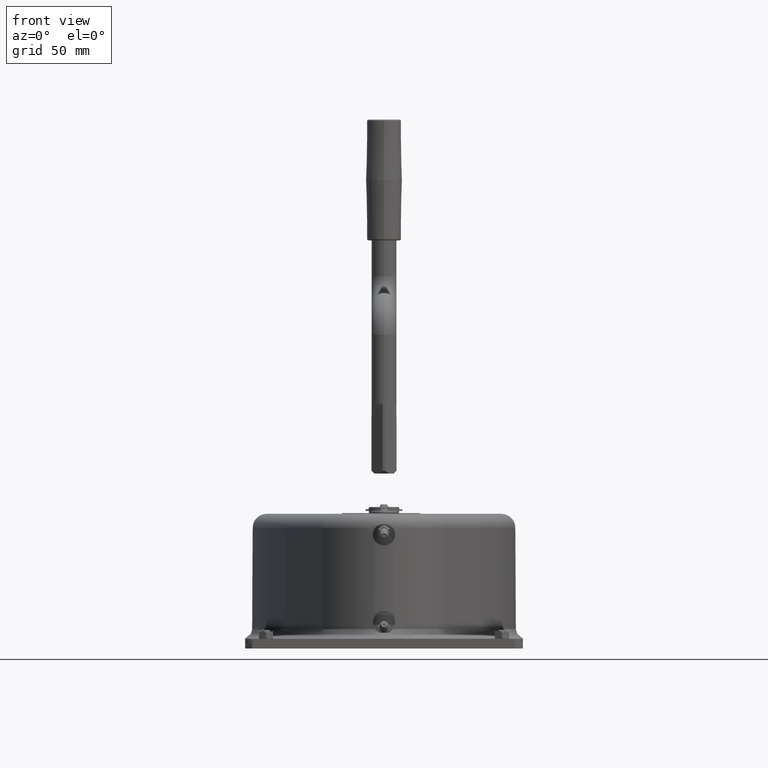
[diagram: clean part render]
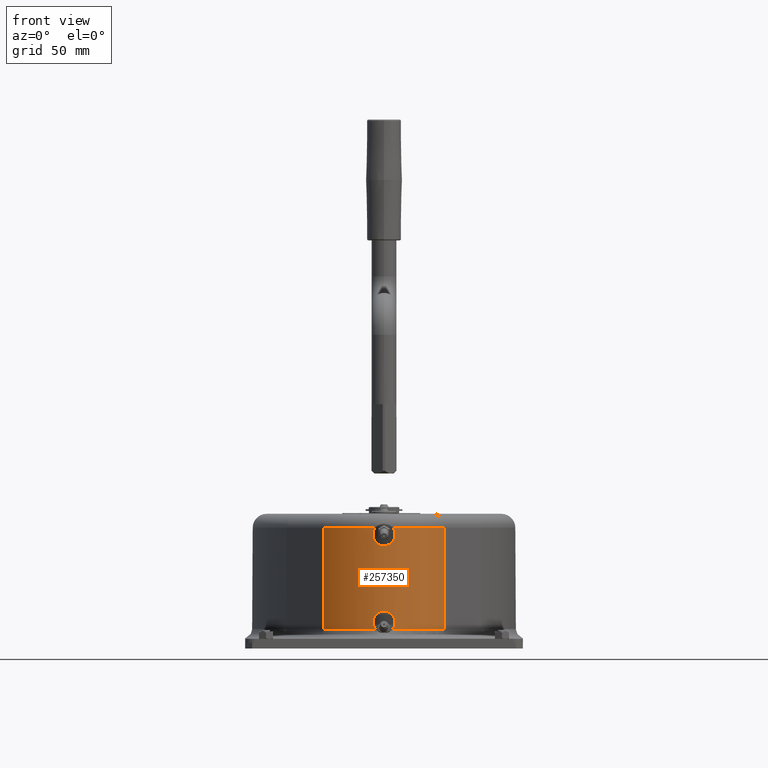
[diagram: same view with one face highlighted and labeled with its STEP entity id]
A machine part, front view. The second image highlights one B-rep face of the part: STEP entity #257350.
In plain terms, the highlighted cylindrical surface (partial cylindrical patch) has radius 50 mm, axis along (0, 0, 1).
Its self-contained STEP definition (entity closure, byte-faithful):
#84180=CARTESIAN_POINT('',(11.2511396099303,186.187848566815,68.));
#84190=VERTEX_POINT('',#84180);
#84220=CARTESIAN_POINT('',(9.50081367329997,186.471055401549,
72.9999999908777));
#84230=CARTESIAN_POINT('',(9.57073246014009,186.461011116429,
72.9124658085857));
#84240=CARTESIAN_POINT('',(9.63870090204036,186.451095814653,
72.8235965075215));
#84250=CARTESIAN_POINT('',(9.70465673110699,186.441343325992,
72.7335146633197));
#84260=CARTESIAN_POINT('',(9.77060962877667,186.431591270779,
72.643436822792));
#84270=CARTESIAN_POINT('',(9.83481382957165,186.421962947788,
72.5517862829649));
#84280=CARTESIAN_POINT('',(9.89716886755292,186.412494671554,
72.4586604845581));
#84290=CARTESIAN_POINT('',(9.95952374450985,186.403026419771,
72.3655349266374));
#84300=CARTESIAN_POINT('',(10.0200289348526,186.393718316367,
72.270934740702));
#84310=CARTESIAN_POINT('',(10.0785888783469,186.384606249589,
72.174970277313));
#84320=CARTESIAN_POINT('',(10.1371487220657,186.375494198337,
72.0790059774298));
#84330=CARTESIAN_POINT('',(10.1937628649027,186.366578278924,
71.9816780322369));
#84340=CARTESIAN_POINT('',(10.2483432535022,186.357893209351,
71.8831078928748));
#84350=CARTESIAN_POINT('',(10.3029235858491,186.349208148729,
71.7845378551028));
#84360=CARTESIAN_POINT('',(10.3554697423557,186.340754030515,
71.684726310591));
#84370=CARTESIAN_POINT('',(10.4059031946887,186.332563712898,
71.5838039455408));
#84380=CARTESIAN_POINT('',(10.4563366278738,186.324373398389,
71.4828816188072));
#84390=CARTESIAN_POINT('',(10.5046569757681,186.316446971379,
71.3808492029038));
#84400=CARTESIAN_POINT('',(10.5507968217552,186.308814797364,
71.2778445198789));
#84410=CARTESIAN_POINT('',(10.596936680106,186.301182621305,
71.1748398092524));
#84420=CARTESIAN_POINT('',(10.6408957032871,186.293844776788,
71.0708635948692));
#84430=CARTESIAN_POINT('',(10.682618749049,186.286828581023,
70.9660584976964));
#84440=CARTESIAN_POINT('',(10.7243418336755,186.279812378723,
70.8612533028987));
#84450=CARTESIAN_POINT('',(10.7638286623454,186.273117892958,
70.7556200075929));
#84460=CARTESIAN_POINT('',(10.8010370999187,186.266768935489,
70.6493034466539));
#84470=CARTESIAN_POINT('',(10.8382455981234,186.260419967675,
70.5429867124709));
#84480=CARTESIAN_POINT('',(10.8731754878149,186.254416582843,
70.435987499143));
#84490=CARTESIAN_POINT('',(10.905797923136,186.248778748227,
70.3284500110494));
#84500=CARTESIAN_POINT('',(10.9384204360656,186.243140900198,
70.2209122671252));
#84510=CARTESIAN_POINT('',(10.9687353441205,186.237868642064,
70.112837022114));
#84520=CARTESIAN_POINT('',(10.9967268866226,186.232977894038,
70.0043647394756));
#84530=CARTESIAN_POINT('',(11.0247018991837,186.228090034162,
69.8959565133443));
#84540=CARTESIAN_POINT('',(11.0504362914923,186.223569245348,
69.7868492032545));
#84550=CARTESIAN_POINT('',(11.0739094314574,186.21943004143,
69.6770429687914));
#84560=CARTESIAN_POINT('',(11.0973801473588,186.215291264967,
69.5672480739826));
#84570=CARTESIAN_POINT('',(11.1185776735017,186.211536178563,
69.4568027015751));
#84580=CARTESIAN_POINT('',(11.1374573827793,186.208181838712,
69.3458513764671));
#84590=CARTESIAN_POINT('',(11.1563370669705,186.204827503318,
69.2349001987859));
#84600=CARTESIAN_POINT('',(11.1728987434755,186.201873961098,
69.1234439110772));
#84610=CARTESIAN_POINT('',(11.1871098945283,186.199334289683,
69.0116335344256));
#84620=CARTESIAN_POINT('',(11.201321036994,186.196794619802,
68.8998232253357));
#84630=CARTESIAN_POINT('',(11.2131815210019,186.194668853851,
68.7876597025415));
#84640=CARTESIAN_POINT('',(11.2226719407705,186.192965745919,
68.6752977080425));
#84650=CARTESIAN_POINT('',(11.2321623615522,186.191262637805,
68.5629357015493));
#84660=CARTESIAN_POINT('',(11.2392826461762,186.18998220605,
68.4503761133858));
#84670=CARTESIAN_POINT('',(11.2440269585613,186.189128687932,
68.3377745634107));
#84680=CARTESIAN_POINT('',(11.2487712748546,186.188275169112,
68.2251729206788));
#84690=CARTESIAN_POINT('',(11.2511396099303,186.187848566815,
68.1125302028386));
#84700=CARTESIAN_POINT('',(11.2511396099303,186.187848566815,68.));
#84710=B_SPLINE_CURVE_WITH_KNOTS('',3,(#84220,#84230,#84240,#84250,
#84260,#84270,#84280,#84290,#84300,#84310,#84320,#84330,#84340,#84350,
#84360,#84370,#84380,#84390,#84400,#84410,#84420,#84430,#84440,#84450,
#84460,#84470,#84480,#84490,#84500,#84510,#84520,#84530,#84540,#84550,
#84560,#84570,#84580,#84590,#84600,#84610,#84620,#84630,#84640,#84650,
#84660,#84670,#84680,#84690,#84700),.UNSPECIFIED.,.F.,.F.,(4,3,3,3,3,3,3
,3,3,3,3,3,3,3,3,3,4),(0.,0.336846876620682,0.673677105427531,
1.01159423668231,1.35031367970566,1.68952865166352,2.02892025515699,
2.36816689279341,2.70695349806767,3.04498102825334,3.38197666109267,
3.71857322661593,4.0560194694542,4.39404698879382,4.73234342090534,
5.07058905962846,5.40846669598291),.UNSPECIFIED.);
#84720=CARTESIAN_POINT('',(9.50081367329996,186.471055401549,
72.9999999908778));
#84730=VERTEX_POINT('',#84720);
#84740=EDGE_CURVE('',#84730,#84190,#84710,.T.);
#86250=CARTESIAN_POINT('',(-2.98728004339489,186.689035889187,
73.0000000006251));
#86260=VERTEX_POINT('',#86250);
#86290=CARTESIAN_POINT('',(-4.74642351257192,186.467087069811,68.));
#86300=CARTESIAN_POINT('',(-4.74642351257192,186.467087069811,
68.1120472912599));
#86310=CARTESIAN_POINT('',(-4.74406222810258,186.467427800355,
68.2242744313349));
#86320=CARTESIAN_POINT('',(-4.7393229194554,186.468110633326,
68.336535612538));
#86330=CARTESIAN_POINT('',(-4.73458361997045,186.468793464977,
68.448796576713));
#86340=CARTESIAN_POINT('',(-4.7274662647136,186.469818404314,
68.5610907372153));
#86350=CARTESIAN_POINT('',(-4.71796685282144,186.471182882308,
68.6732666854693));
#86360=CARTESIAN_POINT('',(-4.70846745208712,186.472547358699,
68.7854425019635));
#86370=CARTESIAN_POINT('',(-4.69658602790996,186.474251365636,
68.8974992357875));
#86380=CARTESIAN_POINT('',(-4.68233204851704,186.47628830779,
69.0092829100257));
#86390=CARTESIAN_POINT('',(-4.66807807556597,186.478325249024,
69.1210665337452));
#86400=CARTESIAN_POINT('',(-4.6514516442779,186.480695104187,
69.2325762209912));
#86410=CARTESIAN_POINT('',(-4.63247585714387,186.483387309179,
69.3436583579953));
#86420=CARTESIAN_POINT('',(-4.61350006520155,186.486079514854,
69.4547405231465));
#86430=CARTESIAN_POINT('',(-4.59217507542211,186.489094036665,
69.5653942726797));
#86440=CARTESIAN_POINT('',(-4.56853724634364,186.492416536487,
69.6754691815178));
#86450=CARTESIAN_POINT('',(-4.54489939455422,186.495739039501,
69.7855441961147));
#86460=CARTESIAN_POINT('',(-4.51894891871865,186.499369475744,
69.8950395333087));
#86470=CARTESIAN_POINT('',(-4.49073452111775,186.503290055863,
70.0038106748346));
#86480=CARTESIAN_POINT('',(-4.46252007584838,186.507210642605,
70.1125820001304));
#86490=CARTESIAN_POINT('',(-4.43204197610078,186.511421319174,
70.2206283384376));
#86500=CARTESIAN_POINT('',(-4.39935981839942,186.515901283444,
70.3278136859935));
#86510=CARTESIAN_POINT('',(-4.38301537729295,186.518141726466,
70.3814173867226));
#86520=CARTESIAN_POINT('',(-4.36613786608487,186.52044702738,
70.4347514935983));
#86530=CARTESIAN_POINT('',(-4.34867461760448,186.522822632861,
70.487984379915));
#86540=CARTESIAN_POINT('',(-4.33121251480546,186.525198082489,
70.5412137738732));
#86550=CARTESIAN_POINT('',(-4.31317463315298,186.527642464144,
70.5943074863222));
#86560=CARTESIAN_POINT('',(-4.29456369383904,186.530153497093,
70.6472483105586));
#86570=CARTESIAN_POINT('',(-4.2573418397796,186.535175559677,
70.7531298891438));
#86580=CARTESIAN_POINT('',(-4.21782699483055,186.540464426469,
70.8583998867111));
#86590=CARTESIAN_POINT('',(-4.17605067322015,186.545999300862,
70.9629179856774));
#86600=CARTESIAN_POINT('',(-4.13427443450153,186.551534164271,
71.0674358772609));
#86610=CARTESIAN_POINT('',(-4.09023694946441,186.557314985972,
71.1712011154916));
#86620=CARTESIAN_POINT('',(-4.04398307327196,186.563317746318,
71.2740720721129));
#86630=CARTESIAN_POINT('',(-3.99772925608651,186.569320499007,
71.3769428974996));
#86640=CARTESIAN_POINT('',(-3.94925934133789,186.575545130186,
71.4789186866067));
#86650=CARTESIAN_POINT('',(-3.89863129803847,186.581964737572,
71.5798594117087));
#86660=CARTESIAN_POINT('',(-3.84800328562861,186.58838434104,
71.680800075224));
#86670=CARTESIAN_POINT('',(-3.79521749465603,186.594998851779,
71.7807049348004));
#86680=CARTESIAN_POINT('',(-3.74034433956447,186.601778923581,
71.8794381876442));
#86690=CARTESIAN_POINT('',(-3.68547118280285,186.608558995588,
71.978171443493));
#86700=CARTESIAN_POINT('',(-3.62851106113618,186.615504553236,
72.0757323801133));
#86710=CARTESIAN_POINT('',(-3.56954575187569,186.622584323577,
72.171991770388));
#86720=CARTESIAN_POINT('',(-3.51058040341975,186.629664098624,
72.2682512246483));
#86730=CARTESIAN_POINT('',(-3.44961030831585,186.636878006933,
72.363208458873));
#86740=CARTESIAN_POINT('',(-3.38672712189084,186.644193423848,
72.4567429121865));
#86750=CARTESIAN_POINT('',(-3.32384385298197,186.651508850358,
72.550277488189));
#86760=CARTESIAN_POINT('',(-3.25904796744366,186.658925704644,
72.6423886590174));
#86770=CARTESIAN_POINT('',(-3.19243910928688,186.666410621857,
72.7329663690503));
#86780=CARTESIAN_POINT('',(-3.12583011858809,186.673895553964,
72.8235442593198));
#86790=CARTESIAN_POINT('',(-3.05740865489871,186.681448469491,
72.9125881243661));
#86800=CARTESIAN_POINT('',(-2.98728004339489,186.689035889187,
73.0000000006251));
#86810=B_SPLINE_CURVE_WITH_KNOTS('',3,(#86290,#86300,#86310,#86320,
#86330,#86340,#86350,#86360,#86370,#86380,#86390,#86400,#86410,#86420,
#86430,#86440,#86450,#86460,#86470,#86480,#86490,#86500,#86510,#86520,
#86530,#86540,#86550,#86560,#86570,#86580,#86590,#86600,#86610,#86620,
#86630,#86640,#86650,#86660,#86670,#86680,#86690,#86700,#86710,#86720,
#86730,#86740,#86750,#86760,#86770,#86780,#86790,#86800),.UNSPECIFIED.,
.F.,.F.,(4,3,3,3,3,3,3,3,3,3,3,3,3,3,3,3,3,4),(0.,0.336637554856298,
0.674084810822387,1.0120496166152,1.35022175130385,1.68828306748942,
2.02591728002958,2.36281987986915,2.53096446120253,2.6993324854289,
3.03691333662917,3.37540386063359,3.71451742000554,4.05394646447579,
4.39337221430096,4.73247385848469,5.07093770383675,5.40846670862235),
.UNSPECIFIED.);
#86820=CARTESIAN_POINT('',(-4.74642351257193,186.467087069811,68.));
#86830=VERTEX_POINT('',#86820);
#86840=EDGE_CURVE('',#86830,#86260,#86810,.T.);
#251220=CARTESIAN_POINT('',(46.5436652625398,160.442730636335,
-2.8421709430404E-14));
#251230=VERTEX_POINT('',#251220);
#251420=CARTESIAN_POINT('',(46.5436652625398,160.442730636335,83.));
#251430=DIRECTION('',(0.,-0.,-1.));
#251440=VECTOR('',#251430,1.);
#251450=LINE('',#251420,#251440);
#251460=CARTESIAN_POINT('',(46.5436652625398,160.442730636335,73.));
#251470=VERTEX_POINT('',#251460);
#251480=EDGE_CURVE('',#251470,#251230,#251450,.T.);
#251610=CARTESIAN_POINT('',(2.39097968190802,136.979134236425,83.));
#251620=DIRECTION('',(0.,-0.,-1.));
#251630=DIRECTION('',(0.999847695156391,-0.0174524064372835,0.));
#251640=AXIS2_PLACEMENT_3D('',#251610,#251620,#251630);
#251650=CYLINDRICAL_SURFACE('',#251640,50.);
#251660=ORIENTED_EDGE('',*,*,#84740,.F.);
#251670=CARTESIAN_POINT('',(11.2511396099303,186.187848566815,68.));
#251680=CARTESIAN_POINT('',(11.2511396099303,186.187848566815,
67.8514713898935));
#251690=CARTESIAN_POINT('',(11.2470124835021,186.188592193984,
67.7031418985853));
#251700=CARTESIAN_POINT('',(11.2388097664166,186.190066993239,
67.55534959222));
#251710=CARTESIAN_POINT('',(11.230613586233,186.191540617199,
67.4076750643646));
#251720=CARTESIAN_POINT('',(11.2183277669288,186.193747963237,
67.2600485271117));
#251730=CARTESIAN_POINT('',(11.2019008011552,186.196688716819,
67.1124581558751));
#251740=CARTESIAN_POINT('',(11.1854769343408,186.199628915627,
66.9648956276704));
#251750=CARTESIAN_POINT('',(11.1649202763612,186.203301014261,
66.8174899656125));
#251760=CARTESIAN_POINT('',(11.1402366813903,186.20768796248,
66.6705851278947));
#251770=CARTESIAN_POINT('',(11.1155531733061,186.212074895256,
66.5236808072844));
#251780=CARTESIAN_POINT('',(11.0867430881829,186.217176581771,
66.3772807380325));
#251790=CARTESIAN_POINT('',(11.0538532254923,186.222962499141,
66.2317369126968));
#251800=CARTESIAN_POINT('',(11.0209634086694,186.228748408443,
66.0861932903338));
#251810=CARTESIAN_POINT('',(10.9839945105452,186.23521837266,
65.9415093592623));
#251820=CARTESIAN_POINT('',(10.9430345290489,186.242328995713,
65.7980333858353));
#251830=CARTESIAN_POINT('',(10.9020745215419,186.249439623281,
65.654557321297));
#251840=CARTESIAN_POINT('',(10.8571244331552,186.257190664236,
65.5122925642748));
#251850=CARTESIAN_POINT('',(10.8083110156211,186.265527218892,
65.3715728081713));
#251860=CARTESIAN_POINT('',(10.7594974677578,186.273863795807,
65.2308526763534));
#251870=CARTESIAN_POINT('',(10.7068218601268,186.282785586213,
65.0916806910396));
#251880=CARTESIAN_POINT('',(10.650444645521,186.292228222866,
64.9543660157818));
#251890=CARTESIAN_POINT('',(10.594067159726,186.301670904942,
64.8170506800046));
#251900=CARTESIAN_POINT('',(10.5339895543211,186.31163409692,
64.6815954943336));
#251910=CARTESIAN_POINT('',(10.4703982901373,186.322046543595,
64.548276024886));
#251920=CARTESIAN_POINT('',(10.4386016721354,186.327252928365,
64.481614223196));
#251930=CARTESIAN_POINT('',(10.4059523017507,186.33256750657,
64.4155313007927));
#251940=CARTESIAN_POINT('',(10.3723063818647,186.338008049637,
64.3497403697212));
#251950=CARTESIAN_POINT('',(10.3386712307231,186.343446851399,
64.2839704957563));
#251960=CARTESIAN_POINT('',(10.3040880871325,186.349003681671,
64.2185934230317));
#251970=CARTESIAN_POINT('',(10.2685696259196,186.354670452998,
64.1536472179368));
#251980=CARTESIAN_POINT('',(10.1975327325293,186.366003991019,
64.0237548608387));
#251990=CARTESIAN_POINT('',(10.122752596594,186.377777744957,
63.8955870157223));
#252000=CARTESIAN_POINT('',(10.0443596978574,186.389920248507,
63.7694483881739));
#252010=CARTESIAN_POINT('',(9.96596705875206,186.402062711843,
63.6433101783871));
#252020=CARTESIAN_POINT('',(9.88396311018451,186.414573592321,
63.5192038942455));
#252030=CARTESIAN_POINT('',(9.79851651433607,186.427373821637,
63.397426503569));
#252040=CARTESIAN_POINT('',(9.71307003719564,186.44017403317,
63.2756492820736));
#252050=CARTESIAN_POINT('',(9.62418264745398,186.453263219316,
63.1562035665934));
#252060=CARTESIAN_POINT('',(9.5320575526323,186.466556950125,
63.0393687854449));
#252070=CARTESIAN_POINT('',(9.43993241647044,186.479850686899,
62.9225339518679));
#252080=CARTESIAN_POINT('',(9.34457153727726,186.493348571548,
62.8083124960252));
#252090=CARTESIAN_POINT('',(9.24620714618858,186.506963347068,
62.696958126047));
#252100=CARTESIAN_POINT('',(9.14784252916548,186.520578153859,
62.5856035002976));
#252110=CARTESIAN_POINT('',(9.04647653354854,186.534309451826,
62.4771181694081));
#252120=CARTESIAN_POINT('',(8.94236302259528,186.548069834473,
62.3717234707714));
#252130=CARTESIAN_POINT('',(8.83824906924691,186.561830275589,
62.2663283242956));
#252140=CARTESIAN_POINT('',(8.73138984223258,186.575619419042,
62.1640257214867));
#252150=CARTESIAN_POINT('',(8.62205148446067,186.589352379379,
62.0649995025262));
#252160=CARTESIAN_POINT('',(8.56736447468385,186.596221099117,
62.0154702438578));
#252170=CARTESIAN_POINT('',(8.51214159733415,186.603065540902,
61.9668319762463));
#252180=CARTESIAN_POINT('',(8.45615503786124,186.609907431103,
61.9188804914435));
#252190=CARTESIAN_POINT('',(8.40016743198044,186.616749449181,
61.870928110411));
#252200=CARTESIAN_POINT('',(8.34344251775813,186.623585403461,
61.8236893479227));
#252210=CARTESIAN_POINT('',(8.28600573265127,186.630404792787,
61.7771953260903));
#252220=CARTESIAN_POINT('',(8.19833033867699,186.640814369938,
61.7062237061776));
#252230=CARTESIAN_POINT('',(8.10899584358681,186.651185317056,
61.6369878774021));
#252240=CARTESIAN_POINT('',(8.01810358690159,186.661479959608,
61.5695951168841));
#252250=CARTESIAN_POINT('',(7.92721149720553,186.671774583247,
61.5022024801814));
#252260=CARTESIAN_POINT('',(7.83476223935751,186.681992800624,
61.4366534313946));
#252270=CARTESIAN_POINT('',(7.74086928079054,186.692097146313,
61.3730489018417));
#252280=CARTESIAN_POINT('',(7.64697643023281,186.702201480378,
61.309444445456));
#252290=CARTESIAN_POINT('',(7.55164053220332,186.712191840032,
61.2477850001263));
#252300=CARTESIAN_POINT('',(7.45498551049987,186.722031668802,
61.1881628656673));
#252310=CARTESIAN_POINT('',(7.35833053624684,186.731871492742,
61.1285407604783));
#252320=CARTESIAN_POINT('',(7.26035714051073,186.741560685162,
61.0709564210003));
#252330=CARTESIAN_POINT('',(7.16119776301506,186.751064271925,
61.0154916578203));
#252340=CARTESIAN_POINT('',(7.06203836954988,186.760567860218,
60.9600268857077));
#252350=CARTESIAN_POINT('',(6.96169373422624,186.769885747256,
60.9066820993439));
#252360=CARTESIAN_POINT('',(6.86030260101897,186.77898516637,
60.8555271780089));
#252370=CARTESIAN_POINT('',(6.7589113841717,186.788084592991,
60.804372214475));
#252380=CARTESIAN_POINT('',(6.6564744348787,186.79696546392,
60.755407472176));
#252390=CARTESIAN_POINT('',(6.55313430755316,186.805597776117,
60.708689874132));
#252400=CARTESIAN_POINT('',(6.44979402312394,186.814230101438,
60.6619722050651));
#252410=CARTESIAN_POINT('',(6.34555133791818,186.822613790719,
60.6175019756421));
#252420=CARTESIAN_POINT('',(6.24054982585188,186.830722071788,
60.5753225610795));
#252430=CARTESIAN_POINT('',(6.1355480760046,186.838830371219,
60.5331430509997));
#252440=CARTESIAN_POINT('',(6.02978827230279,186.846663198037,
60.4932545831176));
#252450=CARTESIAN_POINT('',(5.92341190750622,186.854197369935,
60.4556868594113));
#252460=CARTESIAN_POINT('',(5.87021833696598,186.857964837502,
60.4369010946897));
#252470=CARTESIAN_POINT('',(5.81689373594836,186.86165611192,
60.4187030946829));
#252480=CARTESIAN_POINT('',(5.76338969583558,186.865273099821,
60.401073604665));
#252490=CARTESIAN_POINT('',(5.7098731300919,186.868890934481,
60.383439987473));
#252500=CARTESIAN_POINT('',(5.65613507702656,186.872437214468,
60.3663618466596));
#252510=CARTESIAN_POINT('',(5.6021928739237,186.875908779831,
60.3498468580031));
#252520=CARTESIAN_POINT('',(5.49430844490685,186.882851912024,
60.3168168737063));
#252530=CARTESIAN_POINT('',(5.38560728728696,186.889495966875,
60.2860403271812));
#252540=CARTESIAN_POINT('',(5.27623365166631,186.895817915632,
60.2575701098143));
#252550=CARTESIAN_POINT('',(5.1668600925257,186.902139859969,
60.2290999123553));
#252560=CARTESIAN_POINT('',(5.05681489261099,186.908139630775,
60.2029362886313));
#252570=CARTESIAN_POINT('',(4.94624804758496,186.913797583437,
60.1791197863657));
#252580=CARTESIAN_POINT('',(4.83568120023332,186.919455536217,
60.1553032835992));
#252590=CARTESIAN_POINT('',(4.72459357197855,186.924771614574,
60.1338340888577));
#252600=CARTESIAN_POINT('',(4.61313814399418,186.92972994628,
60.1147395213252));
#252610=CARTESIAN_POINT('',(4.50168263266092,186.934688281694,
60.0956449395134));
#252620=CARTESIAN_POINT('',(4.38986019527109,186.939288827136,
60.078925108867));
#252630=CARTESIAN_POINT('',(4.27782388946744,186.943519741867,
60.064593776938));
#252640=CARTESIAN_POINT('',(4.16576983303229,186.947751326929,
60.0502601744042));
#252650=CARTESIAN_POINT('',(4.05359315086452,186.951610428059,
60.0383229561692));
#252660=CARTESIAN_POINT('',(3.94112937145466,186.955098818812,
60.0287575980369));
#252670=CARTESIAN_POINT('',(3.8286712066322,186.958587035413,
60.0191927174408));
#252680=CARTESIAN_POINT('',(3.7159947862125,186.961701764157,
60.0120096173152));
#252690=CARTESIAN_POINT('',(3.60323746847893,186.964436386746,
60.0072159067668));
#252700=CARTESIAN_POINT('',(3.49047097473487,186.967171231875,
60.0024218061138));
#252710=CARTESIAN_POINT('',(3.37759961055494,186.969526583907,
60.0000158713335));
#252720=CARTESIAN_POINT('',(3.26471893679616,186.97149945067,
60.0000000782745));
#252730=CARTESIAN_POINT('',(3.1518389034348,186.973472306242,
59.9999842853052));
#252740=CARTESIAN_POINT('',(3.03895250563819,186.975062629235,
60.0023586083385));
#252750=CARTESIAN_POINT('',(2.92615542466642,186.976270023632,
60.007121302004));
#252760=CARTESIAN_POINT('',(2.81336905488437,186.977477303374,
60.011883543405));
#252770=CARTESIAN_POINT('',(2.70065354936649,186.978301839208,
60.0190350215579));
#252780=CARTESIAN_POINT('',(2.58814275670494,186.978745502134,
60.0285681270267));
#252790=CARTESIAN_POINT('',(2.36328605366413,186.979632177806,
60.0476203673916));
#252800=CARTESIAN_POINT('',(2.13864609800675,186.978998308907,
60.0762333883733));
#252810=CARTESIAN_POINT('',(1.91487173978427,186.976867397314,
60.1144921294995));
#252820=CARTESIAN_POINT('',(1.8030073804329,186.975802158821,
60.1336175985642));
#252830=CARTESIAN_POINT('',(1.69140896082825,186.974363654809,
60.1551460264009));
#252840=CARTESIAN_POINT('',(1.58023099609754,186.972560669992,
60.1790620317773));
#252850=CARTESIAN_POINT('',(1.46905316963857,186.970757687418,
60.2029780074094));
#252860=CARTESIAN_POINT('',(1.35829668039081,186.968590241812,
60.2292814142799));
#252870=CARTESIAN_POINT('',(1.24811705228285,186.966071180089,
60.2579428482191));
#252880=CARTESIAN_POINT('',(1.13793748147553,186.963552119676,
60.2866042672526));
#252890=CARTESIAN_POINT('',(1.02833565103381,186.960681474517,
60.317623502081));
#252900=CARTESIAN_POINT('',(0.919465116121756,186.957475994458,
60.3509573077979));
#252910=CARTESIAN_POINT('',(0.810594561494135,186.954270513818,
60.3842911195514));
#252920=CARTESIAN_POINT('',(0.702456161314431,186.950730241946,
60.4199392310663));
#252930=CARTESIAN_POINT('',(0.595198714751685,186.946875537369,
60.4578452623894));
#252940=CARTESIAN_POINT('',(0.487941173801804,186.943020829399,
60.49575132707));
#252950=CARTESIAN_POINT('',(0.381565409169361,186.938851742936,
60.5359149867018));
#252960=CARTESIAN_POINT('',(0.276212862646314,186.934391830598,
60.5782679419783));
#252970=CARTESIAN_POINT('',(0.170860147881859,186.929931911137,
60.6206209648897));
#252980=CARTESIAN_POINT('',(0.0665314225587287,186.925181228397,
60.6651629120047));
#252990=CARTESIAN_POINT('',(-0.0366416465699444,186.920166010764,
60.7118152911815));
#253000=CARTESIAN_POINT('',(-0.139814958283848,186.915150781339,
60.7584677800496));
#253010=CARTESIAN_POINT('',(-0.241831908714619,186.909871085457,
60.8072302913386));
#253020=CARTESIAN_POINT('',(-0.342572834837912,186.9043552238,
60.8580163905792));
#253030=CARTESIAN_POINT('',(-0.443251028860526,186.89884279691,
60.9087708649498));
#253040=CARTESIAN_POINT('',(-0.542986530335742,186.893076500124,
60.9617117164708));
#253050=CARTESIAN_POINT('',(-0.641748978260654,186.887075056237,
61.0168487130673));
#253060=CARTESIAN_POINT('',(-0.7405029223204,186.881074129099,
61.0719809621347));
#253070=CARTESIAN_POINT('',(-0.838246893195309,186.874840148369,
61.1292902588166));
#253080=CARTESIAN_POINT('',(-0.934845316549503,186.868400497613,
61.1887202466335));
#253090=CARTESIAN_POINT('',(-1.03144356198735,186.861960858717,
61.2481501249914));
#253100=CARTESIAN_POINT('',(-1.12689555662766,186.855315612068,
61.3097003347548));
#253110=CARTESIAN_POINT('',(-1.22106713290967,186.84849474774,
61.3733012119318));
#253120=CARTESIAN_POINT('',(-1.31523860083287,186.841673891261,
61.4369020159262));
#253130=CARTESIAN_POINT('',(-1.40812895866764,186.834677488569,
61.502553066574));
#253140=CARTESIAN_POINT('',(-1.49960820488425,186.827537680217,
61.5701721423124));
#253150=CARTESIAN_POINT('',(-1.59108740564104,186.820397875414,
61.6377911844481));
#253160=CARTESIAN_POINT('',(-1.68115482692949,186.813114743192,
61.7073777782808));
#253170=CARTESIAN_POINT('',(-1.76968705214329,186.805722041814,
61.778838276856));
#253180=CARTESIAN_POINT('',(-1.88568341463639,186.796036004139,
61.8724669852347));
#253190=CARTESIAN_POINT('',(-1.99904172637776,186.786161998935,
61.9693121088647));
#253200=CARTESIAN_POINT('',(-2.10950814107006,186.77617841934,
62.0691382779125));
#253210=CARTESIAN_POINT('',(-2.21997479228774,186.766194818369,
62.1689646607033));
#253220=CARTESIAN_POINT('',(-2.32754734518323,186.756101966457,
62.2717699275762));
#253230=CARTESIAN_POINT('',(-2.43200415594349,186.745978891274,
62.3772969165766));
#253240=CARTESIAN_POINT('',(-2.53646139289033,186.735855774789,
62.48282433613));
#253250=CARTESIAN_POINT('',(-2.63780098057792,186.725702746756,
62.5910712074634));
#253260=CARTESIAN_POINT('',(-2.73583862398503,186.715597058568,
62.7017678862604));
#253270=CARTESIAN_POINT('',(-2.78486519777498,186.710543415391,
62.7571249787275));
#253280=CARTESIAN_POINT('',(-2.83303432337973,186.705504987968,
62.8130561357366));
#253290=CARTESIAN_POINT('',(-2.88041798260852,186.700481429181,
62.8696359627649));
#253300=CARTESIAN_POINT('',(-2.92782095345909,186.695455822999,
62.9262388493929));
#253310=CARTESIAN_POINT('',(-2.97450391152075,186.690437986743,
62.9835719080469));
#253320=CARTESIAN_POINT('',(-3.02043584614349,186.685437478396,
63.0416094541376));
#253330=CARTESIAN_POINT('',(-3.11229964966128,186.675436468858,
63.1576844632684));
#253340=CARTESIAN_POINT('',(-3.20115775843468,186.665504846443,
63.276579004202));
#253350=CARTESIAN_POINT('',(-3.28677199065413,186.655719625773,
63.3980592593886));
#253360=CARTESIAN_POINT('',(-3.37238590353435,186.645934441601,
63.5195390614564));
#253370=CARTESIAN_POINT('',(-3.45475398926171,186.636295980487,
63.6436022070759));
#253380=CARTESIAN_POINT('',(-3.53365878903571,186.626879995831,
63.7699804930013));
#253390=CARTESIAN_POINT('',(-3.6125634486517,186.6174640279,
63.896358554442));
#253400=CARTESIAN_POINT('',(-3.68800303332136,186.608270855467,
64.0250491050651));
#253410=CARTESIAN_POINT('',(-3.75978895592759,186.599372498327,
64.1557565341237));
#253420=CARTESIAN_POINT('',(-3.83157488655822,186.590474140193,
64.2864639777932));
#253430=CARTESIAN_POINT('',(-3.89970558450788,186.58187089584,
64.4191854421377));
#253440=CARTESIAN_POINT('',(-3.96402733123061,186.573628748086,
64.5536062161921));
#253450=CARTESIAN_POINT('',(-4.02834920862117,186.565386583589,
64.6880272633185));
#253460=CARTESIAN_POINT('',(-4.08886083448532,186.557505776611,
64.8241446361998));
#253470=CARTESIAN_POINT('',(-4.14544722016524,186.550044288144,
64.9616342127499));
#253480=CARTESIAN_POINT('',(-4.20203383661571,186.542582769247,
65.0991243500098));
#253490=CARTESIAN_POINT('',(-4.25469423187792,186.535540776846,
65.2379836750528));
#253500=CARTESIAN_POINT('',(-4.30335375996779,186.528966726243,
65.3778898166501));
#253510=CARTESIAN_POINT('',(-4.32768363080989,186.525679686513,
65.4478431945126));
#253520=CARTESIAN_POINT('',(-4.35101349207331,186.52250953269,
65.5180571100165));
#253530=CARTESIAN_POINT('',(-4.37333864105506,186.51946121986,
65.5884952667665));
#253540=CARTESIAN_POINT('',(-4.39566699183404,186.516412469852,
65.6589435255183));
#253550=CARTESIAN_POINT('',(-4.41704272989558,186.513478434245,
65.7297815524804));
#253560=CARTESIAN_POINT('',(-4.43744750172011,186.510665428161,
65.8009714154886));
#253570=CARTESIAN_POINT('',(-4.47825705428855,186.505039414763,
65.9433511726236));
#253580=CARTESIAN_POINT('',(-4.51518031593379,186.499898150871,
66.0871386929036));
#253590=CARTESIAN_POINT('',(-4.54809400886771,186.495285705559,
66.232010481946));
#253600=CARTESIAN_POINT('',(-4.58100761615438,186.490673272249,
66.3768818940064));
#253610=CARTESIAN_POINT('',(-4.60991073542487,186.486589847469,
66.5228342822134));
#253620=CARTESIAN_POINT('',(-4.6347164001128,186.483069378628,
66.6695240482502));
#253630=CARTESIAN_POINT('',(-4.6595220524275,186.479548911542,
66.8162137411171));
#253640=CARTESIAN_POINT('',(-4.68022962942765,186.476591532993,
66.9636373576415));
#253650=CARTESIAN_POINT('',(-4.69679237797022,186.47421972203,
67.1114419899445));
#253660=CARTESIAN_POINT('',(-4.71335515298215,186.471847907277,
67.2592468584579));
#253670=CARTESIAN_POINT('',(-4.72577280402729,186.470061726369,
67.4074292468108));
#253680=CARTESIAN_POINT('',(-4.73403986728961,186.468871520266,
67.5556382981231));
#253690=CARTESIAN_POINT('',(-4.74230696187336,186.467681309654,
67.703847910955));
#253700=CARTESIAN_POINT('',(-4.74642351257192,186.467087069811,
67.8520807769879));
#253710=CARTESIAN_POINT('',(-4.74642351257192,186.467087069811,68.));
#253720=B_SPLINE_CURVE_WITH_KNOTS('',3,(#251670,#251680,#251690,#251700,
#251710,#251720,#251730,#251740,#251750,#251760,#251770,#251780,#251790,
#251800,#251810,#251820,#251830,#251840,#251850,#251860,#251870,#251880,
#251890,#251900,#251910,#251920,#251930,#251940,#251950,#251960,#251970,
#251980,#251990,#252000,#252010,#252020,#252030,#252040,#252050,#252060,
#252070,#252080,#252090,#252100,#252110,#252120,#252130,#252140,#252150,
#252160,#252170,#252180,#252190,#252200,#252210,#252220,#252230,#252240,
#252250,#252260,#252270,#252280,#252290,#252300,#252310,#252320,#252330,
#252340,#252350,#252360,#252370,#252380,#252390,#252400,#252410,#252420,
#252430,#252440,#252450,#252460,#252470,#252480,#252490,#252500,#252510,
#252520,#252530,#252540,#252550,#252560,#252570,#252580,#252590,#252600,
#252610,#252620,#252630,#252640,#252650,#252660,#252670,#252680,#252690,
#252700,#252710,#252720,#252730,#252740,#252750,#252760,#252770,#252780,
#252790,#252800,#252810,#252820,#252830,#252840,#252850,#252860,#252870,
#252880,#252890,#252900,#252910,#252920,#252930,#252940,#252950,#252960,
#252970,#252980,#252990,#253000,#253010,#253020,#253030,#253040,#253050,
#253060,#253070,#253080,#253090,#253100,#253110,#253120,#253130,#253140,
#253150,#253160,#253170,#253180,#253190,#253200,#253210,#253220,#253230,
#253240,#253250,#253260,#253270,#253280,#253290,#253300,#253310,#253320,
#253330,#253340,#253350,#253360,#253370,#253380,#253390,#253400,#253410,
#253420,#253430,#253440,#253450,#253460,#253470,#253480,#253490,#253500,
#253510,#253520,#253530,#253540,#253550,#253560,#253570,#253580,#253590,
#253600,#253610,#253620,#253630,#253640,#253650,#253660,#253670,#253680,
#253690,#253700,#253710),.UNSPECIFIED.,.F.,.F.,(4,3,3,3,3,3,3,3,3,3,3,3,
3,3,3,3,3,3,3,3,3,3,3,3,3,3,3,3,3,3,3,3,3,3,3,3,3,3,3,3,3,3,3,3,3,3,3,3,
3,3,3,3,3,3,3,3,3,3,3,3,3,3,3,3,3,3,3,3,4),(0.,0.444885676307358,
0.889420333647262,1.33577007889172,1.7833597226576,2.23147576028566,
2.67937115241427,3.12630363030815,3.57157467461576,3.7936025247532,
4.01607648085774,4.46236431768096,4.9099062497974,5.35800556970411,
5.80593412354516,6.25296869820567,6.69842794043429,6.92045954287379,
7.14283031704216,7.48320124368666,7.82444044418585,8.16623879415495,
8.50827276041907,8.85021412633302,9.19173944329532,9.53253966591349,
9.87233042648486,10.0417809303115,10.2112589544235,10.5506382691274,
10.8903232178433,11.229997400426,11.5693468586731,11.9081669788337,
12.2468995307187,12.5855945586309,12.9242924965657,13.263019858891,
13.9419626548061,14.2828294631124,14.6242704971664,14.9659657969121,
15.3075855414319,15.6487999075048,15.9892889818822,16.3287532147348,
16.6679432757136,17.0082540553997,17.3494385114944,17.6911988112348,
18.0332188313174,18.4811888074781,18.9283228104114,19.3739353500172,
19.5960040165182,19.8182861502099,20.2642968784579,20.7116915687235,
21.1597618185865,21.60777173046,22.0549948955981,22.5007519135838,
22.7228917397466,22.9450102657435,23.3903482729541,23.8365808070293,
24.2829843363523,24.7288308065548,25.173427318581),.UNSPECIFIED.);
#253730=EDGE_CURVE('',#84190,#86830,#253720,.T.);
#253740=ORIENTED_EDGE('',*,*,#253730,.F.);
#253750=ORIENTED_EDGE('',*,*,#86840,.F.);
#253760=CARTESIAN_POINT('',(2.3909796819076,136.979134236425,73.));
#253770=DIRECTION('',(0.,0.,-1.));
#253780=DIRECTION('',(-1.,0.,0.));
#253790=AXIS2_PLACEMENT_3D('',#253760,#253770,#253780);
#253800=CIRCLE('',#253790,50.);
#253810=CARTESIAN_POINT('',(-40.9159415704462,161.969343752201,73.));
#253820=VERTEX_POINT('',#253810);
#253830=EDGE_CURVE('',#253820,#86260,#253800,.T.);
#253840=ORIENTED_EDGE('',*,*,#253830,.T.);
#253850=CARTESIAN_POINT('',(-40.9159415704462,161.969343752201,83.));
#253860=DIRECTION('',(0.,-0.,-1.));
#253870=VECTOR('',#253860,1.);
#253880=LINE('',#253850,#253870);
#253890=CARTESIAN_POINT('',(-40.9159415704462,161.969343752201,
-2.8421709430404E-14));
#253900=VERTEX_POINT('',#253890);
#253910=EDGE_CURVE('',#253820,#253900,#253880,.T.);
#253920=ORIENTED_EDGE('',*,*,#253910,.F.);
#253930=CARTESIAN_POINT('',(2.39097968190802,136.979134236425,
-2.8421709430404E-14));
#253940=DIRECTION('',(0.,-0.,-1.));
#253950=DIRECTION('',(0.999847695156391,-0.0174524064372835,0.));
#253960=AXIS2_PLACEMENT_3D('',#253930,#253940,#253950);
#253970=CIRCLE('',#253960,50.);
#253980=CARTESIAN_POINT('',(-2.9872800438964,186.689035889132,0.));
#253990=VERTEX_POINT('',#253980);
#254000=EDGE_CURVE('',#253900,#253990,#253970,.T.);
#254010=ORIENTED_EDGE('',*,*,#254000,.F.);
#254020=CARTESIAN_POINT('',(-2.9872800438964,186.689035889132,
4.44089209850063E-15));
#254030=CARTESIAN_POINT('',(-3.05740865538162,186.681448469438,
0.0874118762536893));
#254040=CARTESIAN_POINT('',(-3.12583011905267,186.673895553913,
0.17645574129408));
#254050=CARTESIAN_POINT('',(-3.19243910973345,186.666410621807,
0.267033631556942));
#254060=CARTESIAN_POINT('',(-3.25904796787222,186.658925704595,
0.357611341583253));
#254070=CARTESIAN_POINT('',(-3.3238438533928,186.651508850311,
0.449722512404246));
#254080=CARTESIAN_POINT('',(-3.38672712228433,186.644193423802,
0.543257088398787));
#254090=CARTESIAN_POINT('',(-3.44961030869197,186.636878006889,
0.636791541704163));
#254100=CARTESIAN_POINT('',(-3.51058040377891,186.629664098582,
0.731748775920253));
#254110=CARTESIAN_POINT('',(-3.5695457522183,186.622584323536,
0.828008230171228));
#254120=CARTESIAN_POINT('',(-3.62851106146224,186.615504553196,
0.924267620436625));
#254130=CARTESIAN_POINT('',(-3.68547118311279,186.60855899555,
1.02182855704707));
#254140=CARTESIAN_POINT('',(-3.74034433985879,186.601778923544,
1.12056181288531));
#254150=CARTESIAN_POINT('',(-3.79521749493515,186.594998851745,
1.21929506571938));
#254160=CARTESIAN_POINT('',(-3.84800328589258,186.588384341007,
1.31919992528475));
#254170=CARTESIAN_POINT('',(-3.89863129828738,186.58196473754,
1.42014058878749));
#254180=CARTESIAN_POINT('',(-3.94925934157219,186.575545130156,
1.52108131387782));
#254190=CARTESIAN_POINT('',(-3.99772925630672,186.569320498979,
1.62305710297281));
#254200=CARTESIAN_POINT('',(-4.0439830734787,186.563317746292,
1.72592792834689));
#254210=CARTESIAN_POINT('',(-4.09023694965764,186.557314985947,
1.82879888495542));
#254220=CARTESIAN_POINT('',(-4.13427443468187,186.551534164248,
1.93256412317307));
#254230=CARTESIAN_POINT('',(-4.17605067338821,186.545999300839,
2.037082014743));
#254240=CARTESIAN_POINT('',(-4.21782699498634,186.540464426449,
2.14160011369576));
#254250=CARTESIAN_POINT('',(-4.25734183992369,186.535175559658,
2.24687011124902));
#254260=CARTESIAN_POINT('',(-4.29456369397214,186.530153497075,
2.35275168981993));
#254270=CARTESIAN_POINT('',(-4.31317463328056,186.527642464126,
2.40569251404912));
#254280=CARTESIAN_POINT('',(-4.33121251492773,186.525198082473,
2.45878622649101));
#254290=CARTESIAN_POINT('',(-4.34867461772157,186.522822632845,
2.51201562044182));
#254300=CARTESIAN_POINT('',(-4.36613786619674,186.520447027364,
2.56524850675114));
#254310=CARTESIAN_POINT('',(-4.38301537739988,186.518141726451,
2.61858261361961));
#254320=CARTESIAN_POINT('',(-4.39935981850168,186.51590128343,
2.67218631434178));
#254330=CARTESIAN_POINT('',(-4.4320419761936,186.511421319161,
2.77937166188358));
#254340=CARTESIAN_POINT('',(-4.46252007593228,186.507210642594,
2.8874180001761));
#254350=CARTESIAN_POINT('',(-4.49073452119341,186.503290055852,
2.99618932545701));
#254360=CARTESIAN_POINT('',(-4.51894891878607,186.499369475735,
3.10496046696811));
#254370=CARTESIAN_POINT('',(-4.54489939461401,186.495739039493,
3.21445580414682));
#254380=CARTESIAN_POINT('',(-4.56853724639646,186.49241653648,
3.32453081872811));
#254390=CARTESIAN_POINT('',(-4.59217507546825,186.489094036659,
3.43460572755206));
#254400=CARTESIAN_POINT('',(-4.61350006524133,186.486079514848,
3.54525947706943));
#254410=CARTESIAN_POINT('',(-4.63247585717779,186.483387309174,
3.65634164220329));
#254420=CARTESIAN_POINT('',(-4.6514516443063,186.480695104183,
3.76742377919189));
#254430=CARTESIAN_POINT('',(-4.66807807558942,186.478325249021,
3.87893346642179));
#254440=CARTESIAN_POINT('',(-4.68233204853615,186.476288307787,
3.99071709012409));
#254450=CARTESIAN_POINT('',(-4.69658602792484,186.474251365634,
4.10250076434601));
#254460=CARTESIAN_POINT('',(-4.70846745209845,186.472547358698,
4.21455749815349));
#254470=CARTESIAN_POINT('',(-4.71796685282993,186.471182882307,
4.32673331463093));
#254480=CARTESIAN_POINT('',(-4.72746626471926,186.469818404313,
4.4389092628683));
#254490=CARTESIAN_POINT('',(-4.73458361997399,186.468793464976,
4.55120342335388));
#254500=CARTESIAN_POINT('',(-4.73932291945752,186.468110633326,
4.66346438751211));
#254510=CARTESIAN_POINT('',(-4.74406222810329,186.467427800355,
4.77572556869841));
#254520=CARTESIAN_POINT('',(-4.74642351257192,186.467087069811,
4.88795270875679));
#254530=CARTESIAN_POINT('',(-4.74642351257192,186.467087069811,
4.99999999999997));
#254540=B_SPLINE_CURVE_WITH_KNOTS('',3,(#254020,#254030,#254040,#254050,
#254060,#254070,#254080,#254090,#254100,#254110,#254120,#254130,#254140,
#254150,#254160,#254170,#254180,#254190,#254200,#254210,#254220,#254230,
#254240,#254250,#254260,#254270,#254280,#254290,#254300,#254310,#254320,
#254330,#254340,#254350,#254360,#254370,#254380,#254390,#254400,#254410,
#254420,#254430,#254440,#254450,#254460,#254470,#254480,#254490,#254500,
#254510,#254520,#254530),.UNSPECIFIED.,.F.,.F.,(4,3,3,3,3,3,3,3,3,3,3,3,
3,3,3,3,3,4),(0.,0.337529004737755,0.675992850041104,1.01509449417526,
1.35452024395018,1.69394928836957,2.03306284769026,2.37155337164315,
2.70913422279179,2.87750224699239,3.04564682830063,3.3825494280908,
3.72018364058114,4.05824495671656,4.39641709135483,4.73438189709722,
5.07182915301291,5.408466707819),.UNSPECIFIED.);
#254550=CARTESIAN_POINT('',(-4.74642351257193,186.467087069811,
4.99999999999997));
#254560=VERTEX_POINT('',#254550);
#254570=EDGE_CURVE('',#253990,#254560,#254540,.T.);
#254580=ORIENTED_EDGE('',*,*,#254570,.F.);
#254590=CARTESIAN_POINT('',(-4.74642351257192,186.467087069811,
4.99999999999997));
#254600=CARTESIAN_POINT('',(-4.74642351257192,186.467087069811,
5.14791922301205));
#254610=CARTESIAN_POINT('',(-4.74230696187336,186.467681309653,
5.29615208904497));
#254620=CARTESIAN_POINT('',(-4.73403986728962,186.468871520266,
5.44436170187687));
#254630=CARTESIAN_POINT('',(-4.72577280402729,186.470061726369,
5.59257075318918));
#254640=CARTESIAN_POINT('',(-4.71335515298215,186.471847907277,
5.74075314154201));
#254650=CARTESIAN_POINT('',(-4.69679237797022,186.47421972203,
5.88855801005549));
#254660=CARTESIAN_POINT('',(-4.68022962942765,186.476591532993,
6.03636264235848));
#254670=CARTESIAN_POINT('',(-4.6595220524275,186.479548911542,
6.18378625888284));
#254680=CARTESIAN_POINT('',(-4.6347164001128,186.483069378628,
6.33047595174979));
#254690=CARTESIAN_POINT('',(-4.6099107354236,186.48658984747,
6.47716571779405));
#254700=CARTESIAN_POINT('',(-4.5810076161527,186.49067327225,
6.62311810600093));
#254710=CARTESIAN_POINT('',(-4.54809400886771,186.495285705559,
6.76798951805397));
#254720=CARTESIAN_POINT('',(-4.5151803159338,186.499898150871,
6.91286130709637));
#254730=CARTESIAN_POINT('',(-4.47825705428856,186.505039414763,
7.05664882737632));
#254740=CARTESIAN_POINT('',(-4.43744750172011,186.510665428161,
7.19902858451135));
#254750=CARTESIAN_POINT('',(-4.41704272989556,186.513478434245,
7.27021844751958));
#254760=CARTESIAN_POINT('',(-4.39566699183405,186.516412469852,
7.3410564744816));
#254770=CARTESIAN_POINT('',(-4.37333864105506,186.51946121986,
7.41150473323347));
#254780=CARTESIAN_POINT('',(-4.35101349207331,186.52250953269,
7.48194288998348));
#254790=CARTESIAN_POINT('',(-4.3276836308099,186.525679686513,
7.55215680548728));
#254800=CARTESIAN_POINT('',(-4.30335375996779,186.528966726243,
7.62211018334981));
#254810=CARTESIAN_POINT('',(-4.25469423187792,186.535540776846,
7.76201632494715));
#254820=CARTESIAN_POINT('',(-4.20203383661568,186.542582769247,
7.90087564999017));
#254830=CARTESIAN_POINT('',(-4.14544722016524,186.550044288144,
8.03836578725005));
#254840=CARTESIAN_POINT('',(-4.08886083448594,186.55750577661,
8.17585536379861));
#254850=CARTESIAN_POINT('',(-4.02834920862194,186.565386583589,
8.31197273667987));
#254860=CARTESIAN_POINT('',(-3.9640273312306,186.573628748086,
8.44639378380792));
#254870=CARTESIAN_POINT('',(-3.89970558450981,186.581870895839,
8.58081455785824));
#254880=CARTESIAN_POINT('',(-3.83157488656037,186.590474140193,
8.71353602220284));
#254890=CARTESIAN_POINT('',(-3.75978895592757,186.599372498327,
8.84424346587623));
#254900=CARTESIAN_POINT('',(-3.68800303332137,186.608270855467,
8.97495089493486));
#254910=CARTESIAN_POINT('',(-3.61256344865167,186.6174640279,
9.10364144555804));
#254920=CARTESIAN_POINT('',(-3.53365878903569,186.626879995831,
9.23001950699863));
#254930=CARTESIAN_POINT('',(-3.45475398926171,186.636295980487,
9.35639779292404));
#254940=CARTESIAN_POINT('',(-3.37238590353433,186.645934441601,
9.48046093854354));
#254950=CARTESIAN_POINT('',(-3.28677199065412,186.655719625773,
9.60194074061138));
#254960=CARTESIAN_POINT('',(-3.20115775844006,186.665504846442,
9.7234209957903));
#254970=CARTESIAN_POINT('',(-3.112299649667,186.675436468858,
9.84231553672431));
#254980=CARTESIAN_POINT('',(-3.02043584614347,186.685437478396,
9.95839054586234));
#254990=CARTESIAN_POINT('',(-2.97450391152071,186.690437986743,
10.0164280919531));
#255000=CARTESIAN_POINT('',(-2.92782095345911,186.695455822999,
10.073761150607));
#255010=CARTESIAN_POINT('',(-2.88041798260849,186.700481429181,
10.1303640372351));
#255020=CARTESIAN_POINT('',(-2.83303432337972,186.705504987968,
10.1869438642633));
#255030=CARTESIAN_POINT('',(-2.78486519777496,186.710543415391,
10.2428750212725));
#255040=CARTESIAN_POINT('',(-2.735838623985,186.715597058568,
10.2982321137396));
#255050=CARTESIAN_POINT('',(-2.63780098057415,186.725702746757,
10.4089287925408));
#255060=CARTESIAN_POINT('',(-2.53646139288636,186.735855774789,
10.517175663874));
#255070=CARTESIAN_POINT('',(-2.43200415594346,186.745978891274,
10.6227030834233));
#255080=CARTESIAN_POINT('',(-2.32754734518687,186.756101966456,
10.72823007242));
#255090=CARTESIAN_POINT('',(-2.21997479229158,186.766194818369,
10.8310353392932));
#255100=CARTESIAN_POINT('',(-2.10950814107003,186.77617841934,
10.9308617220875));
#255110=CARTESIAN_POINT('',(-1.99904172637475,186.786161998935,
11.030687891138));
#255120=CARTESIAN_POINT('',(-1.88568341463321,186.796036004139,
11.1275330147678));
#255130=CARTESIAN_POINT('',(-1.76968705214327,186.805722041814,
11.221161723144));
#255140=CARTESIAN_POINT('',(-1.68115482692947,186.813114743192,
11.2926222217192));
#255150=CARTESIAN_POINT('',(-1.59108740564102,186.820397875414,
11.3622088155519));
#255160=CARTESIAN_POINT('',(-1.49960820488423,186.827537680217,
11.4298278576876));
#255170=CARTESIAN_POINT('',(-1.40812895866762,186.834677488569,
11.497446933426));
#255180=CARTESIAN_POINT('',(-1.31523860083285,186.841673891261,
11.5630979840738));
#255190=CARTESIAN_POINT('',(-1.22106713290964,186.84849474774,
11.6266987880682));
#255200=CARTESIAN_POINT('',(-1.12689555662763,186.855315612068,
11.6902996652451));
#255210=CARTESIAN_POINT('',(-1.03144356198733,186.861960858717,
11.7518498750085));
#255220=CARTESIAN_POINT('',(-0.93484531654948,186.868400497613,
11.8112797533664));
#255230=CARTESIAN_POINT('',(-0.838246893195312,186.874840148369,
11.8707097411833));
#255240=CARTESIAN_POINT('',(-0.740502922320372,186.881074129099,
11.9280190378652));
#255250=CARTESIAN_POINT('',(-0.641748978260624,186.887075056237,
11.9831512869327));
#255260=CARTESIAN_POINT('',(-0.542986530335741,186.893076500124,
12.0382882835291));
#255270=CARTESIAN_POINT('',(-0.443251028860503,186.89884279691,
12.0912291350501));
#255280=CARTESIAN_POINT('',(-0.342572834837891,186.9043552238,
12.1419836094208));
#255290=CARTESIAN_POINT('',(-0.241831908714613,186.909871085457,
12.1927697086614));
#255300=CARTESIAN_POINT('',(-0.139814958283828,186.915150781339,
12.2415322199504));
#255310=CARTESIAN_POINT('',(-0.0366416465699215,186.920166010764,
12.2881847088184));
#255320=CARTESIAN_POINT('',(0.0665314225609911,186.925181228397,
12.3348370879962));
#255330=CARTESIAN_POINT('',(0.170860147884203,186.929931911138,
12.3793790351112));
#255340=CARTESIAN_POINT('',(0.276212862646326,186.934391830598,
12.4217320580217));
#255350=CARTESIAN_POINT('',(0.38156540917138,186.938851742937,
12.4640850132989));
#255360=CARTESIAN_POINT('',(0.487941173803858,186.943020829399,
12.5042486729307));
#255370=CARTESIAN_POINT('',(0.595198714751703,186.946875537369,
12.5421547376106));
#255380=CARTESIAN_POINT('',(0.702456161314427,186.950730241946,
12.5800607689337));
#255390=CARTESIAN_POINT('',(0.810594561494138,186.954270513818,
12.6157088804485));
#255400=CARTESIAN_POINT('',(0.919465116121766,186.957475994458,
12.649042692202));
#255410=CARTESIAN_POINT('',(1.02833565103482,186.960681474517,
12.6823764979193));
#255420=CARTESIAN_POINT('',(1.13793748147655,186.963552119676,
12.7133957327476));
#255430=CARTESIAN_POINT('',(1.24811705228286,186.966071180089,
12.7420571517808));
#255440=CARTESIAN_POINT('',(1.35829668039082,186.968590241812,
12.7707185857201));
#255450=CARTESIAN_POINT('',(1.46905316963857,186.970757687418,
12.7970219925906));
#255460=CARTESIAN_POINT('',(1.58023099609755,186.972560669992,
12.8209379682227));
#255470=CARTESIAN_POINT('',(1.69140896082826,186.974363654809,
12.8448539735991));
#255480=CARTESIAN_POINT('',(1.80300738043291,186.975802158821,
12.8663824014357));
#255490=CARTESIAN_POINT('',(1.91487173978428,186.976867397314,
12.8855078705005));
#255500=CARTESIAN_POINT('',(2.13864609799775,186.978998308907,
12.9237666116251));
#255510=CARTESIAN_POINT('',(2.36328605365502,186.979632177806,
12.9523796326075));
#255520=CARTESIAN_POINT('',(2.58814275670495,186.978745502134,
12.9714318729733));
#255530=CARTESIAN_POINT('',(2.70065354936648,186.978301839208,
12.980964978442));
#255540=CARTESIAN_POINT('',(2.81336905488437,186.977477303374,
12.9881164565949));
#255550=CARTESIAN_POINT('',(2.92615542466643,186.976270023632,
12.9928786979959));
#255560=CARTESIAN_POINT('',(3.03895250563819,186.975062629235,
12.9976413916614));
#255570=CARTESIAN_POINT('',(3.15183890343481,186.973472306242,
13.0000157146948));
#255580=CARTESIAN_POINT('',(3.26471893679616,186.97149945067,
12.9999999217254));
#255590=CARTESIAN_POINT('',(3.37759961055493,186.969526583907,
12.9999841286664));
#255600=CARTESIAN_POINT('',(3.49047097473488,186.967171231875,
12.9975781938861));
#255610=CARTESIAN_POINT('',(3.60323746847893,186.964436386746,
12.9927840932332));
#255620=CARTESIAN_POINT('',(3.71599478621249,186.961701764157,
12.9879903826848));
#255630=CARTESIAN_POINT('',(3.8286712066322,186.958587035413,
12.9808072825591));
#255640=CARTESIAN_POINT('',(3.94112937145466,186.955098818812,
12.9712424019631));
#255650=CARTESIAN_POINT('',(4.05359315086388,186.951610428059,
12.9616770438308));
#255660=CARTESIAN_POINT('',(4.16576983303164,186.947751326929,
12.9497398255959));
#255670=CARTESIAN_POINT('',(4.27782388946743,186.943519741867,
12.9354062230619));
#255680=CARTESIAN_POINT('',(4.38986019527107,186.939288827136,
12.921074891133));
#255690=CARTESIAN_POINT('',(4.50168263266091,186.934688281694,
12.9043550604865));
#255700=CARTESIAN_POINT('',(4.61313814399418,186.92972994628,
12.8852604786747));
#255710=CARTESIAN_POINT('',(4.72459357197854,186.924771614574,
12.8661659111422));
#255720=CARTESIAN_POINT('',(4.83568120023333,186.919455536217,
12.8446967164008));
#255730=CARTESIAN_POINT('',(4.94624804758497,186.913797583437,
12.8208802136343));
#255740=CARTESIAN_POINT('',(5.05681489261104,186.908139630775,
12.7970637113687));
#255750=CARTESIAN_POINT('',(5.16686009252571,186.902139859969,
12.7709000876446));
#255760=CARTESIAN_POINT('',(5.27623365166636,186.895817915632,
12.7424298901856));
#255770=CARTESIAN_POINT('',(5.38560728728525,186.889495966875,
12.7139596728192));
#255780=CARTESIAN_POINT('',(5.49430844490517,186.882851912024,
12.6831831262941));
#255790=CARTESIAN_POINT('',(5.6021928739238,186.875908779831,
12.6501531419968));
#255800=CARTESIAN_POINT('',(5.65613507702666,186.872437214468,
12.6336381533404));
#255810=CARTESIAN_POINT('',(5.70987313009202,186.868890934481,
12.6165600125269));
#255820=CARTESIAN_POINT('',(5.76338969583571,186.865273099821,
12.5989263953349));
#255830=CARTESIAN_POINT('',(5.81689373594853,186.86165611192,
12.581296905317));
#255840=CARTESIAN_POINT('',(5.87021833696608,186.857964837502,
12.5630989053102));
#255850=CARTESIAN_POINT('',(5.92341190750631,186.854197369935,
12.5443131405886));
#255860=CARTESIAN_POINT('',(6.02978827230285,186.846663198037,
12.5067454168823));
#255870=CARTESIAN_POINT('',(6.13554807600462,186.838830371219,
12.4668569490002));
#255880=CARTESIAN_POINT('',(6.24054982585186,186.830722071788,
12.4246774389204));
#255890=CARTESIAN_POINT('',(6.34555133791813,186.822613790719,
12.3824980243579));
#255900=CARTESIAN_POINT('',(6.44979402312387,186.814230101438,
12.3380277949349));
#255910=CARTESIAN_POINT('',(6.55313430755305,186.805597776117,
12.291310125868));
#255920=CARTESIAN_POINT('',(6.65647443487857,186.79696546392,
12.244592527824));
#255930=CARTESIAN_POINT('',(6.75891138417157,186.788084592991,
12.195627785525));
#255940=CARTESIAN_POINT('',(6.86030260101882,186.77898516637,
12.1444728219911));
#255950=CARTESIAN_POINT('',(6.96169373422681,186.769885747256,
12.0933179006557));
#255960=CARTESIAN_POINT('',(7.06203836955047,186.760567860218,
12.0399731142919));
#255970=CARTESIAN_POINT('',(7.1611977630149,186.751064271925,
11.9845083421798));
#255980=CARTESIAN_POINT('',(7.26035714051053,186.741560685162,
11.9290435789997));
#255990=CARTESIAN_POINT('',(7.35833053624667,186.731871492742,
11.8714592395218));
#256000=CARTESIAN_POINT('',(7.45498551049971,186.722031668802,
11.8118371343327));
#256010=CARTESIAN_POINT('',(7.55164053220315,186.712191840032,
11.7522149998737));
#256020=CARTESIAN_POINT('',(7.64697643023268,186.702201480378,
11.6905555545441));
#256030=CARTESIAN_POINT('',(7.74086928079043,186.692097146313,
11.6269510981583));
#256040=CARTESIAN_POINT('',(7.83476223935741,186.681992800624,
11.5633465686054));
#256050=CARTESIAN_POINT('',(7.92721149720544,186.671774583247,
11.4977975198186));
#256060=CARTESIAN_POINT('',(8.01810358690154,186.661479959608,
11.4304048831159));
#256070=CARTESIAN_POINT('',(8.10899584358679,186.651185317056,
11.3630121225979));
#256080=CARTESIAN_POINT('',(8.19833033867699,186.640814369938,
11.2937762938223));
#256090=CARTESIAN_POINT('',(8.28600573265129,186.630404792787,
11.2228046739096));
#256100=CARTESIAN_POINT('',(8.34344251775817,186.623585403461,
11.1763106520772));
#256110=CARTESIAN_POINT('',(8.40016743198051,186.616749449181,
11.1290718895888));
#256120=CARTESIAN_POINT('',(8.45615503786132,186.609907431103,
11.0811195085564));
#256130=CARTESIAN_POINT('',(8.51214159733428,186.603065540902,
11.0331680237535));
#256140=CARTESIAN_POINT('',(8.56736447468393,186.596221099117,
10.984529756142));
#256150=CARTESIAN_POINT('',(8.62205148446074,186.589352379379,
10.9350004974737));
#256160=CARTESIAN_POINT('',(8.73138984222844,186.575619419043,
10.835974278517));
#256170=CARTESIAN_POINT('',(8.83824906924294,186.56183027559,
10.7336716757084));
#256180=CARTESIAN_POINT('',(8.94236302259524,186.548069834473,
10.6282765292286));
#256190=CARTESIAN_POINT('',(9.04647653355216,186.534309451826,
10.5228818305882));
#256200=CARTESIAN_POINT('',(9.14784252916889,186.520578153858,
10.4143964996984));
#256210=CARTESIAN_POINT('',(9.24620714618847,186.506963347068,
10.303041873953));
#256220=CARTESIAN_POINT('',(9.34457153727714,186.493348571548,
10.1916875039749));
#256230=CARTESIAN_POINT('',(9.43993241647032,186.479850686899,
10.0774660481321));
#256240=CARTESIAN_POINT('',(9.53205755263218,186.466556950125,
9.96063121455523));
#256250=CARTESIAN_POINT('',(9.62418264745389,186.453263219316,
9.84379643340666));
#256260=CARTESIAN_POINT('',(9.71307003719549,186.44017403317,
9.72435071792655));
#256270=CARTESIAN_POINT('',(9.79851651433597,186.427373821637,
9.6025734964311));
#256280=CARTESIAN_POINT('',(9.88396311018492,186.414573592321,
9.48079610575388));
#256290=CARTESIAN_POINT('',(9.96596705875243,186.402062711843,
9.35668982161222));
#256300=CARTESIAN_POINT('',(10.0443596978573,186.389920248507,
9.23055161182609));
#256310=CARTESIAN_POINT('',(10.1227525965944,186.377777744957,
9.10441298427701));
#256320=CARTESIAN_POINT('',(10.1975327325296,186.366003991019,
8.97624513916059));
#256330=CARTESIAN_POINT('',(10.2685696259196,186.354670452998,
8.84635278206309));
#256340=CARTESIAN_POINT('',(10.3040880871325,186.349003681671,
8.78140657696819));
#256350=CARTESIAN_POINT('',(10.3386712307232,186.343446851399,
8.71602950424353));
#256360=CARTESIAN_POINT('',(10.3723063818648,186.338008049637,
8.65025963027862));
#256370=CARTESIAN_POINT('',(10.4059523017504,186.33256750657,
8.58446869920773));
#256380=CARTESIAN_POINT('',(10.4386016721353,186.327252928365,
8.51838577680425));
#256390=CARTESIAN_POINT('',(10.4703982901374,186.322046543595,
8.45172397511379));
#256400=CARTESIAN_POINT('',(10.533989554327,186.311634096919,
8.31840450565396));
#256410=CARTESIAN_POINT('',(10.5940671597312,186.301670904941,
8.1829493199827));
#256420=CARTESIAN_POINT('',(10.6504446455209,186.292228222866,
8.0456339842182));
#256430=CARTESIAN_POINT('',(10.7068218601314,186.282785586212,
7.90831930894903));
#256440=CARTESIAN_POINT('',(10.7594974677618,186.273863795806,
7.76914732363481));
#256450=CARTESIAN_POINT('',(10.8083110156211,186.265527218893,
7.62842719182879));
#256460=CARTESIAN_POINT('',(10.8571244331552,186.257190664236,
7.48770743572526));
#256470=CARTESIAN_POINT('',(10.9020745215418,186.249439623281,
7.34544267870323));
#256480=CARTESIAN_POINT('',(10.9430345290489,186.242328995713,
7.20196661416479));
#256490=CARTESIAN_POINT('',(10.9839945105436,186.235218372661,
7.05849064074302));
#256500=CARTESIAN_POINT('',(11.0209634086682,186.228748408444,
6.91380670967149));
#256510=CARTESIAN_POINT('',(11.0538532254923,186.222962499141,
6.76826308730332));
#256520=CARTESIAN_POINT('',(11.0867430881828,186.217176581771,
6.62271926196757));
#256530=CARTESIAN_POINT('',(11.1155531733061,186.212074895256,
6.47631919271572));
#256540=CARTESIAN_POINT('',(11.1402366813903,186.20768796248,
6.32941487210531));
#256550=CARTESIAN_POINT('',(11.1649202763612,186.203301014261,
6.18251003438752));
#256560=CARTESIAN_POINT('',(11.1854769343408,186.199628915627,
6.03510437232946));
#256570=CARTESIAN_POINT('',(11.2019008011552,186.196688716819,
5.88754184412477));
#256580=CARTESIAN_POINT('',(11.2183277669297,186.193747963237,
5.73995147288046));
#256590=CARTESIAN_POINT('',(11.2306135862334,186.191540617199,
5.59232493562734));
#256600=CARTESIAN_POINT('',(11.2388097664166,186.190066993239,
5.44465040777976));
#256610=CARTESIAN_POINT('',(11.2470124835021,186.188592193984,
5.29685810141455));
#256620=CARTESIAN_POINT('',(11.2511396099303,186.187848566815,
5.14852861010639));
#256630=CARTESIAN_POINT('',(11.2511396099303,186.187848566815,
4.99999999999997));
#256640=B_SPLINE_CURVE_WITH_KNOTS('',3,(#254590,#254600,#254610,#254620,
#254630,#254640,#254650,#254660,#254670,#254680,#254690,#254700,#254710,
#254720,#254730,#254740,#254750,#254760,#254770,#254780,#254790,#254800,
#254810,#254820,#254830,#254840,#254850,#254860,#254870,#254880,#254890,
#254900,#254910,#254920,#254930,#254940,#254950,#254960,#254970,#254980,
#254990,#255000,#255010,#255020,#255030,#255040,#255050,#255060,#255070,
#255080,#255090,#255100,#255110,#255120,#255130,#255140,#255150,#255160,
#255170,#255180,#255190,#255200,#255210,#255220,#255230,#255240,#255250,
#255260,#255270,#255280,#255290,#255300,#255310,#255320,#255330,#255340,
#255350,#255360,#255370,#255380,#255390,#255400,#255410,#255420,#255430,
#255440,#255450,#255460,#255470,#255480,#255490,#255500,#255510,#255520,
#255530,#255540,#255550,#255560,#255570,#255580,#255590,#255600,#255610,
#255620,#255630,#255640,#255650,#255660,#255670,#255680,#255690,#255700,
#255710,#255720,#255730,#255740,#255750,#255760,#255770,#255780,#255790,
#255800,#255810,#255820,#255830,#255840,#255850,#255860,#255870,#255880,
#255890,#255900,#255910,#255920,#255930,#255940,#255950,#255960,#255970,
#255980,#255990,#256000,#256010,#256020,#256030,#256040,#256050,#256060,
#256070,#256080,#256090,#256100,#256110,#256120,#256130,#256140,#256150,
#256160,#256170,#256180,#256190,#256200,#256210,#256220,#256230,#256240,
#256250,#256260,#256270,#256280,#256290,#256300,#256310,#256320,#256330,
#256340,#256350,#256360,#256370,#256380,#256390,#256400,#256410,#256420,
#256430,#256440,#256450,#256460,#256470,#256480,#256490,#256500,#256510,
#256520,#256530,#256540,#256550,#256560,#256570,#256580,#256590,#256600,
#256610,#256620,#256630),.UNSPECIFIED.,.F.,.F.,(4,3,3,3,3,3,3,3,3,3,3,3,
3,3,3,3,3,3,3,3,3,3,3,3,3,3,3,3,3,3,3,3,3,3,3,3,3,3,3,3,3,3,3,3,3,3,3,3,
3,3,3,3,3,3,3,3,3,3,3,3,3,3,3,3,3,3,3,3,4),(0.,0.444596512026187,
0.890442982228706,1.33684651155169,1.7830790456269,2.22841705283751,
2.45053557883442,2.67267540499724,3.11843242298295,3.56565558812101,
4.01366549999454,4.46173574985757,4.90913044012308,5.35514116837116,
5.57742330206291,5.79949196856404,6.2451045081699,6.69223851110322,
7.14020848726388,7.48222850734646,7.82398880708679,8.16517326318158,
8.50548404286759,8.84467410384648,9.18413833669907,9.52462741107647,
9.86584177714928,10.2074615216691,10.5491568214148,10.8905978554688,
11.2314646637751,11.9104074596902,12.2491348220154,12.5878327599502,
12.9265277878623,13.2652603397473,13.6040804599079,13.9434299181551,
14.2831041007378,14.6227890494537,14.9621683641576,15.1316463882696,
15.3010968920963,15.6408876526676,15.9816878752856,16.3232131922479,
16.6651545581618,17.007188524426,17.3489868743952,17.6902260748946,
18.0305970015392,18.2529677757076,18.4749993781472,18.9204586203756,
19.367493195036,19.815421748877,20.2635210687838,20.7110630009003,
21.1573508377236,21.3798247938282,21.6018526439657,22.0471236882732,
22.494056166167,22.9419515582955,23.3900675959236,23.8376572396896,
24.2840069849342,24.7285416422742,25.1734273185814),.UNSPECIFIED.);
#256650=CARTESIAN_POINT('',(11.2511396099303,186.187848566815,
4.99999999999997));
#256660=VERTEX_POINT('',#256650);
#256670=EDGE_CURVE('',#254560,#256660,#256640,.T.);
#256680=ORIENTED_EDGE('',*,*,#256670,.F.);
#256690=CARTESIAN_POINT('',(11.2511396099303,186.187848566815,
4.99999999999997));
#256700=CARTESIAN_POINT('',(11.2511396099303,186.187848566815,
4.88746979691784));
#256710=CARTESIAN_POINT('',(11.2487712748444,186.188275169113,
4.77482707883269));
#256720=CARTESIAN_POINT('',(11.2440269585304,186.189128687938,
4.66222543585591));
#256730=CARTESIAN_POINT('',(11.2392826461247,186.189982206059,
4.5496238856366));
#256740=CARTESIAN_POINT('',(11.2321623614698,186.19126263782,
4.43706429722913));
#256750=CARTESIAN_POINT('',(11.2226719406469,186.192965745941,
4.32470229049387));
#256760=CARTESIAN_POINT('',(11.213181520837,186.19466885388,
4.21234029575187));
#256770=CARTESIAN_POINT('',(11.2013210367777,186.196794619841,
4.10017677271699));
#256780=CARTESIAN_POINT('',(11.1871098942507,186.199334289733,
3.98836646338969));
#256790=CARTESIAN_POINT('',(11.1728987431365,186.201873961159,
3.8765560865014));
#256800=CARTESIAN_POINT('',(11.1563370665601,186.204827503391,
3.76509979855704));
#256810=CARTESIAN_POINT('',(11.1374573822875,186.208181838799,
3.6541486206423));
#256820=CARTESIAN_POINT('',(11.1185776729283,186.211536178665,
3.5431972953001));
#256830=CARTESIAN_POINT('',(11.0973801466943,186.215291265084,
3.43275192266415));
#256840=CARTESIAN_POINT('',(11.073909430693,186.219430041565,
3.32295702763299));
#256850=CARTESIAN_POINT('',(11.050436290627,186.223569245501,
3.21315079294219));
#256860=CARTESIAN_POINT('',(11.0247018982103,186.228090034333,
3.10404348263883));
#256870=CARTESIAN_POINT('',(10.9967268855287,186.232977894229,
2.99563525628523));
#256880=CARTESIAN_POINT('',(10.9687353429053,186.237868642276,
2.88716297342174));
#256890=CARTESIAN_POINT('',(10.9384204347192,186.243140900432,
2.77908772818904));
#256900=CARTESIAN_POINT('',(10.9057979216487,186.248778748484,
2.67154998404764));
#256910=CARTESIAN_POINT('',(10.8731754861867,186.254416583123,
2.56401249573696));
#256920=CARTESIAN_POINT('',(10.8382455963446,186.26041996798,
2.45701328219638));
#256930=CARTESIAN_POINT('',(10.8010370979799,186.26676893582,
2.3506965478064));
#256940=CARTESIAN_POINT('',(10.7638286602468,186.273117893314,
2.24437998666042));
#256950=CARTESIAN_POINT('',(10.7243418314077,186.279812379106,
2.13874669115295));
#256960=CARTESIAN_POINT('',(10.6826187466033,186.286828581434,
2.03394149616017));
#256970=CARTESIAN_POINT('',(10.6408957006635,186.293844777227,
1.92913639879216));
#256980=CARTESIAN_POINT('',(10.5969366772957,186.301182621772,
1.82516018422019));
#256990=CARTESIAN_POINT('',(10.55079681875,186.308814797861,
1.72215547341226));
#257000=CARTESIAN_POINT('',(10.5046569725682,186.316446971905,
1.61915079020588));
#257010=CARTESIAN_POINT('',(10.4563366244709,186.324373398946,
1.51711837412831));
#257020=CARTESIAN_POINT('',(10.4059031910754,186.332563713484,
1.41619604722858));
#257030=CARTESIAN_POINT('',(10.3554697385328,186.340754031132,
1.31527368201375));
#257040=CARTESIAN_POINT('',(10.3029235818085,186.349208149377,
1.21546213734385));
#257050=CARTESIAN_POINT('',(10.2483432492363,186.357893210029,
1.116892099421));
#257060=CARTESIAN_POINT('',(10.1937628604123,186.366578279633,
1.01832195990955));
#257070=CARTESIAN_POINT('',(10.1371487173443,186.375494199078,
0.920994014576035));
#257080=CARTESIAN_POINT('',(10.0785888733884,186.384606250361,
0.825029714561372));
#257090=CARTESIAN_POINT('',(10.0200289296583,186.393718317169,
0.729065251042595));
#257100=CARTESIAN_POINT('',(9.95952373907287,186.403026420604,
0.634465064985063));
#257110=CARTESIAN_POINT('',(9.89716886186694,186.412494672418,
0.541339506949972));
#257120=CARTESIAN_POINT('',(9.83481382363881,186.421962948682,
0.448213708431973));
#257130=CARTESIAN_POINT('',(9.77060962259151,186.431591271702,
0.35656316850244));
#257140=CARTESIAN_POINT('',(9.70465672466294,186.441343326945,
0.266485327879051));
#257150=CARTESIAN_POINT('',(9.63870089532254,186.451095815638,
0.176403483561276));
#257160=CARTESIAN_POINT('',(9.5707324531413,186.461011117445,
0.0875341823899087));
#257170=CARTESIAN_POINT('',(9.50081366601347,186.471055402596,
-5.77315972805081E-14));
#257180=B_SPLINE_CURVE_WITH_KNOTS('',3,(#256690,#256700,#256710,#256720,
#256730,#256740,#256750,#256760,#256770,#256780,#256790,#256800,#256810,
#256820,#256830,#256840,#256850,#256860,#256870,#256880,#256890,#256900,
#256910,#256920,#256930,#256940,#256950,#256960,#256970,#256980,#256990,
#257000,#257010,#257020,#257030,#257040,#257050,#257060,#257070,#257080,
#257090,#257100,#257110,#257120,#257130,#257140,#257150,#257160,#257170)
,.UNSPECIFIED.,.F.,.F.,(4,3,3,3,3,3,3,3,3,3,3,3,3,3,3,3,4),(0.,
0.337877637088488,0.676123276546543,1.0144197093919,1.35244722946213,
1.6898934730259,2.02649003927245,2.36348567285958,2.70151320379371,
3.04029980981465,3.37954644819383,3.7189380524238,4.0581530251097,
4.39687246885079,4.73478960081143,5.07161983031183,5.4084667077048),
.UNSPECIFIED.);
#257190=CARTESIAN_POINT('',(9.50081366601347,186.471055402596,
-7.105427357601E-14));
#257200=VERTEX_POINT('',#257190);
#257210=EDGE_CURVE('',#256660,#257200,#257180,.T.);
#257220=ORIENTED_EDGE('',*,*,#257210,.F.);
#257230=EDGE_CURVE('',#257200,#251230,#253970,.T.);
#257240=ORIENTED_EDGE('',*,*,#257230,.F.);
#257250=ORIENTED_EDGE('',*,*,#251480,.T.);
#257260=CARTESIAN_POINT('',(2.3909796819076,136.979134236425,73.));
#257270=DIRECTION('',(0.,0.,-1.));
#257280=DIRECTION('',(-1.,0.,0.));
#257290=AXIS2_PLACEMENT_3D('',#257260,#257270,#257280);
#257300=CIRCLE('',#257290,50.);
#257310=EDGE_CURVE('',#84730,#251470,#257300,.T.);
#257320=ORIENTED_EDGE('',*,*,#257310,.T.);
#257330=EDGE_LOOP('',(#257320,#257250,#257240,#257220,#256680,#254580,
#254010,#253920,#253840,#253750,#253740,#251660));
#257340=FACE_OUTER_BOUND('',#257330,.T.);
#257350=ADVANCED_FACE('',(#257340),#251650,.T.);